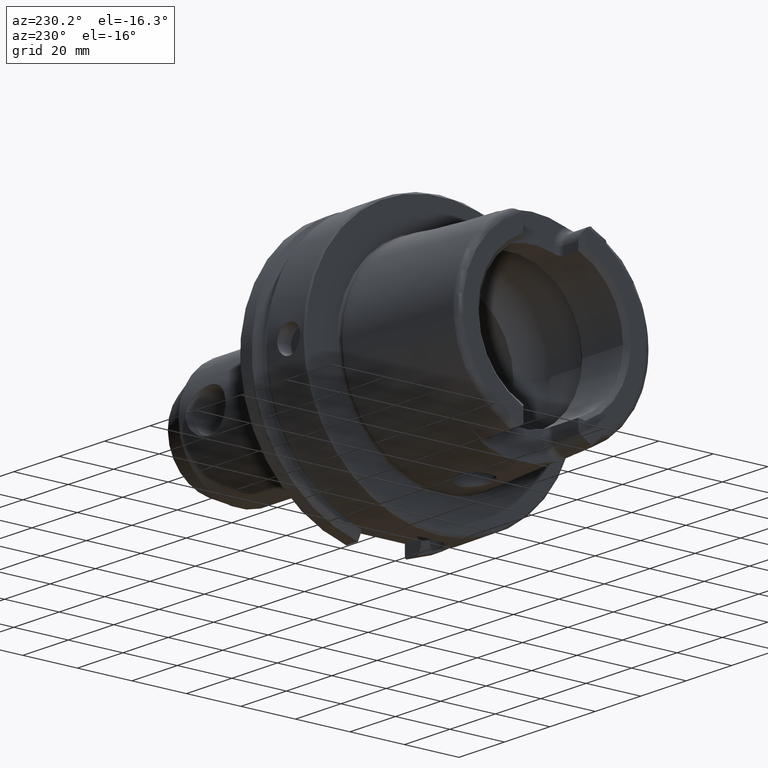
[diagram: clean part render]
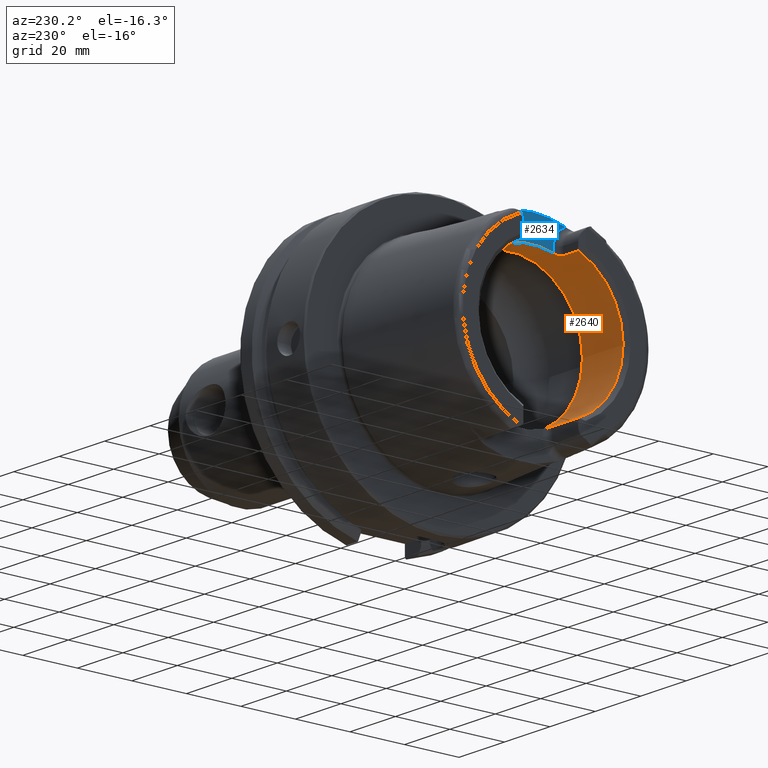
[diagram: same view with the hole feature highlighted: cylindrical wall and planar end face, labeled with their STEP entity ids]
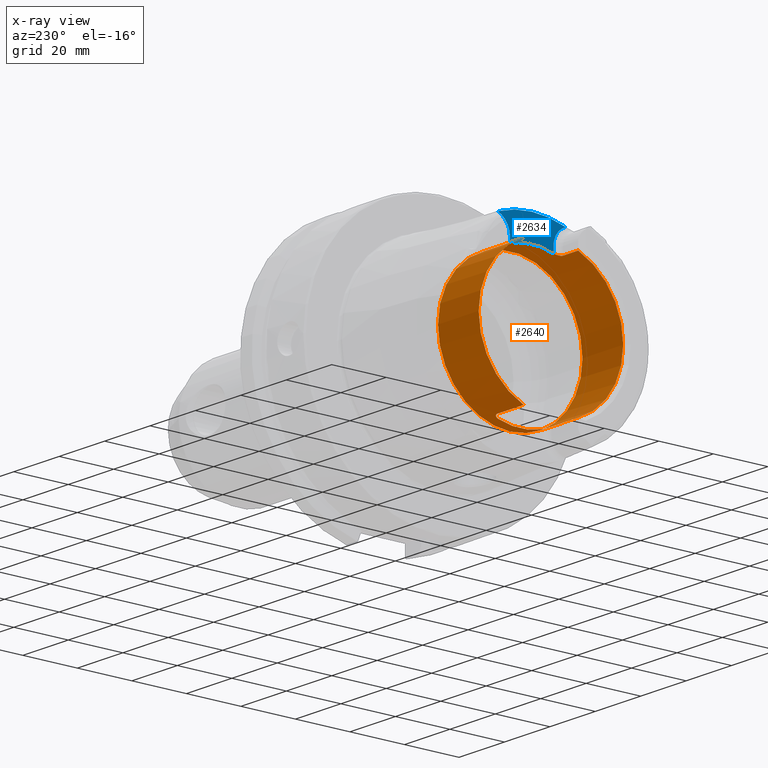
[diagram: x-ray of the same camera — body ghosted, the hole faces saturated]
A machine part, auxiliary view. The highlighted faces form one hole feature of diameter 53 mm: the cylindrical wall (entity #2640, orange) and its adjacent planar end face (entity #2634, blue) — they share a circular edge in the B-rep.
The next image is the same camera in x-ray (body ghosted, the hole faces saturated) — the bore reads through the body.
Wall:
#190=LINE('',#4449,#314);
#198=LINE('',#4528,#322);
#202=LINE('',#4594,#326);
#263=LINE('',#5782,#387);
#267=LINE('',#5832,#391);
#314=VECTOR('',#3251,10.);
#322=VECTOR('',#3293,10.);
#326=VECTOR('',#3313,10.);
#387=VECTOR('',#3606,10.);
#391=VECTOR('',#3652,26.5);
#465=CIRCLE('',#2793,26.5);
#466=CIRCLE('',#2794,26.5);
#535=CIRCLE('',#2923,26.5);
#540=CIRCLE('',#2935,26.5);
#541=CIRCLE('',#2938,26.5);
#544=CIRCLE('',#2945,26.5);
#545=CIRCLE('',#2946,26.5);
#546=CIRCLE('',#2947,26.5);
#620=CYLINDRICAL_SURFACE('',#2944,26.5);
#736=FACE_OUTER_BOUND('',#886,.T.);
#886=EDGE_LOOP('',(#2385,#2386,#2387,#2388,#2389,#2390,#2391,#2392,#2393,
#2394,#2395,#2396,#2397,#2398,#2399,#2400,#2401,#2402));
#990=B_SPLINE_CURVE_WITH_KNOTS('',3,(#5717,#5718,#5719,#5720,#5721,#5722,
#5723,#5724,#5725,#5726),.UNSPECIFIED.,.F.,.F.,(4,2,2,2,4),(0.307245873696209,
0.387318131676521,0.467390389656833,0.542677307505841,0.617964225354849),
 .UNSPECIFIED.);
#991=B_SPLINE_CURVE_WITH_KNOTS('',3,(#5735,#5736,#5737,#5738,#5739,#5740,
#5741,#5742,#5743,#5744),.UNSPECIFIED.,.F.,.F.,(4,2,2,2,4),(0.61796422535485,
0.694491364966707,0.771018504578565,0.849854597041439,0.928690689504313),
 .UNSPECIFIED.);
#992=B_SPLINE_CURVE_WITH_KNOTS('',3,(#5757,#5758,#5759,#5760,#5761,#5762,
#5763,#5764,#5765,#5766),.UNSPECIFIED.,.F.,.F.,(4,2,2,2,4),(0.617964225354849,
0.693251143203857,0.768538061052865,0.848610319033177,0.928682577013489),
 .UNSPECIFIED.);
#993=B_SPLINE_CURVE_WITH_KNOTS('',3,(#5786,#5787,#5788,#5789,#5790,#5791,
#5792,#5793,#5794,#5795),.UNSPECIFIED.,.F.,.F.,(4,2,2,2,4),(0.307245873696209,
0.387318131676521,0.467390389656833,0.542677307505841,0.617964225354849),
 .UNSPECIFIED.);
#1096=VERTEX_POINT('',#4437);
#1099=VERTEX_POINT('',#4447);
#1108=VERTEX_POINT('',#4496);
#1110=VERTEX_POINT('',#4504);
#1111=VERTEX_POINT('',#4508);
#1117=VERTEX_POINT('',#4526);
#1123=VERTEX_POINT('',#4559);
#1128=VERTEX_POINT('',#4593);
#1243=VERTEX_POINT('',#5715);
#1245=VERTEX_POINT('',#5734);
#1249=VERTEX_POINT('',#5755);
#1250=VERTEX_POINT('',#5756);
#1252=VERTEX_POINT('',#5776);
#1254=VERTEX_POINT('',#5827);
#1255=VERTEX_POINT('',#5828);
#1256=VERTEX_POINT('',#5830);
#1417=EDGE_CURVE('',#1096,#1099,#190,.T.);
#1430=EDGE_CURVE('',#1110,#1111,#465,.T.);
#1431=EDGE_CURVE('',#1111,#1108,#466,.T.);
#1440=EDGE_CURVE('',#1110,#1117,#198,.T.);
#1453=EDGE_CURVE('',#1128,#1123,#202,.T.);
#1619=EDGE_CURVE('',#1243,#1117,#990,.T.);
#1623=EDGE_CURVE('',#1128,#1245,#991,.T.);
#1629=EDGE_CURVE('',#1249,#1250,#992,.T.);
#1635=EDGE_CURVE('',#1252,#1250,#535,.T.);
#1638=EDGE_CURVE('',#1249,#1108,#263,.T.);
#1641=EDGE_CURVE('',#1252,#1099,#993,.T.);
#1645=EDGE_CURVE('',#1243,#1245,#540,.T.);
#1647=EDGE_CURVE('',#1096,#1123,#541,.T.);
#1651=EDGE_CURVE('',#1254,#1255,#544,.T.);
#1652=EDGE_CURVE('',#1256,#1254,#545,.T.);
#1653=EDGE_CURVE('',#1256,#1111,#267,.T.);
#1654=EDGE_CURVE('',#1255,#1256,#546,.T.);
#2385=ORIENTED_EDGE('',*,*,#1651,.F.);
#2386=ORIENTED_EDGE('',*,*,#1652,.F.);
#2387=ORIENTED_EDGE('',*,*,#1653,.T.);
#2388=ORIENTED_EDGE('',*,*,#1430,.F.);
#2389=ORIENTED_EDGE('',*,*,#1440,.T.);
#2390=ORIENTED_EDGE('',*,*,#1619,.F.);
#2391=ORIENTED_EDGE('',*,*,#1645,.T.);
#2392=ORIENTED_EDGE('',*,*,#1623,.F.);
#2393=ORIENTED_EDGE('',*,*,#1453,.T.);
#2394=ORIENTED_EDGE('',*,*,#1647,.F.);
#2395=ORIENTED_EDGE('',*,*,#1417,.T.);
#2396=ORIENTED_EDGE('',*,*,#1641,.F.);
#2397=ORIENTED_EDGE('',*,*,#1635,.T.);
#2398=ORIENTED_EDGE('',*,*,#1629,.F.);
#2399=ORIENTED_EDGE('',*,*,#1638,.T.);
#2400=ORIENTED_EDGE('',*,*,#1431,.F.);
#2401=ORIENTED_EDGE('',*,*,#1653,.F.);
#2402=ORIENTED_EDGE('',*,*,#1654,.F.);
#2640=ADVANCED_FACE('',(#736),#620,.F.);
#2793=AXIS2_PLACEMENT_3D('',#4509,#3271,#3272);
#2794=AXIS2_PLACEMENT_3D('',#4510,#3273,#3274);
#2923=AXIS2_PLACEMENT_3D('',#5777,#3599,#3600);
#2935=AXIS2_PLACEMENT_3D('',#5804,#3627,#3628);
#2938=AXIS2_PLACEMENT_3D('',#5819,#3633,#3634);
#2944=AXIS2_PLACEMENT_3D('',#5826,#3646,#3647);
#2945=AXIS2_PLACEMENT_3D('',#5829,#3648,#3649);
#2946=AXIS2_PLACEMENT_3D('',#5831,#3650,#3651);
#2947=AXIS2_PLACEMENT_3D('',#5833,#3653,#3654);
#3251=DIRECTION('',(1.,0.,0.));
#3271=DIRECTION('center_axis',(1.,0.,0.));
#3272=DIRECTION('ref_axis',(0.,-1.,0.));
#3273=DIRECTION('center_axis',(1.,0.,0.));
#3274=DIRECTION('ref_axis',(0.,-1.,0.));
#3293=DIRECTION('',(1.,0.,0.));
#3313=DIRECTION('',(-1.,0.,0.));
#3599=DIRECTION('center_axis',(-1.,0.,0.));
#3600=DIRECTION('ref_axis',(0.,1.,0.));
#3606=DIRECTION('',(-1.,0.,0.));
#3627=DIRECTION('center_axis',(-1.,0.,0.));
#3628=DIRECTION('ref_axis',(0.,1.,0.));
#3633=DIRECTION('center_axis',(1.,0.,0.));
#3634=DIRECTION('ref_axis',(0.,-1.,0.));
#3646=DIRECTION('center_axis',(-1.,0.,0.));
#3647=DIRECTION('ref_axis',(0.,1.,0.));
#3648=DIRECTION('center_axis',(-1.,0.,0.));
#3649=DIRECTION('ref_axis',(0.,0.,1.));
#3650=DIRECTION('center_axis',(-1.,0.,0.));
#3651=DIRECTION('ref_axis',(0.,0.,1.));
#3652=DIRECTION('',(-1.,0.,0.));
#3653=DIRECTION('center_axis',(-1.,0.,0.));
#3654=DIRECTION('ref_axis',(0.,0.,1.));
#4437=CARTESIAN_POINT('',(-48.5,10.01,-24.5367051577835));
#4447=CARTESIAN_POINT('',(-37.,10.01,-24.5367051577835));
#4449=CARTESIAN_POINT('',(-40.2903629710818,10.01,-24.5367051577835));
#4496=CARTESIAN_POINT('',(-48.5,-10.01,-24.5367051577835));
#4504=CARTESIAN_POINT('',(-48.5,-10.01,24.5367051577835));
#4508=CARTESIAN_POINT('',(-48.5,-26.5,3.24531401774049E-15));
#4509=CARTESIAN_POINT('Origin',(-48.5,0.,0.));
#4510=CARTESIAN_POINT('Origin',(-48.5,0.,0.));
#4526=CARTESIAN_POINT('',(-42.,-10.01,24.5367051577835));
#4528=CARTESIAN_POINT('',(-40.2903629710818,-10.01,24.5367051577835));
#4559=CARTESIAN_POINT('',(-48.5,10.01,24.5367051577835));
#4593=CARTESIAN_POINT('',(-42.,10.01,24.5367051577835));
#4594=CARTESIAN_POINT('',(-40.2903629710818,10.01,24.5367051577835));
#5715=CARTESIAN_POINT('',(-40.,-8.01,25.2604414054862));
#5717=CARTESIAN_POINT('Ctrl Pts',(-40.,-8.01,25.2604414054862));
#5718=CARTESIAN_POINT('Ctrl Pts',(-40.,-8.26442271458071,25.1797648285777));
#5719=CARTESIAN_POINT('Ctrl Pts',(-40.0513332778729,-8.53503831367686,25.0892968127514));
#5720=CARTESIAN_POINT('Ctrl Pts',(-40.2604388709541,-9.03317850506395,24.9142806373643));
#5721=CARTESIAN_POINT('Ctrl Pts',(-40.4182028025644,-9.2607746884821,24.8299262887475));
#5722=CARTESIAN_POINT('Ctrl Pts',(-40.7762398849713,-9.61038047170956,24.6966285655713));
#5723=CARTESIAN_POINT('Ctrl Pts',(-40.996584045901,-9.75993653512726,24.6374761492843));
#5724=CARTESIAN_POINT('Ctrl Pts',(-41.4829332858843,-9.95981108540838,24.557356442995));
#5725=CARTESIAN_POINT('Ctrl Pts',(-41.74904360717,-10.01,24.5367051577835));
#5726=CARTESIAN_POINT('Ctrl Pts',(-42.,-10.01,24.5367051577835));
#5734=CARTESIAN_POINT('',(-40.,8.01,25.2604414054862));
#5735=CARTESIAN_POINT('Ctrl Pts',(-42.,10.01,24.5367051577835));
#5736=CARTESIAN_POINT('Ctrl Pts',(-41.7449095346271,10.01,24.5367051577835));
#5737=CARTESIAN_POINT('Ctrl Pts',(-41.4747619014646,9.95816285425487,24.5580391842641));
#5738=CARTESIAN_POINT('Ctrl Pts',(-40.9823460284033,9.75229566196282,24.640515927451));
#5739=CARTESIAN_POINT('Ctrl Pts',(-40.7599680829949,9.59839520774108,24.7013267120605));
#5740=CARTESIAN_POINT('Ctrl Pts',(-40.4063494382929,9.24477656303909,24.8358806096526));
#5741=CARTESIAN_POINT('Ctrl Pts',(-40.2529543645221,9.01930384320105,24.9192727261742));
#5742=CARTESIAN_POINT('Ctrl Pts',(-40.049776768453,8.52719637786957,25.0919293188873));
#5743=CARTESIAN_POINT('Ctrl Pts',(-40.,8.26049490494288,25.1810103236462));
#5744=CARTESIAN_POINT('Ctrl Pts',(-40.,8.01,25.2604414054862));
#5755=CARTESIAN_POINT('',(-37.,-10.01,-24.5367051577835));
#5756=CARTESIAN_POINT('',(-35.,-8.01,-25.2604414054862));
#5757=CARTESIAN_POINT('Ctrl Pts',(-37.,-10.01,-24.5367051577835));
#5758=CARTESIAN_POINT('Ctrl Pts',(-36.74904360717,-10.01,-24.5367051577835));
#5759=CARTESIAN_POINT('Ctrl Pts',(-36.4829332858843,-9.95981108540838,-24.557356442995));
#5760=CARTESIAN_POINT('Ctrl Pts',(-35.9965840459011,-9.75993653512726,-24.6374761492843));
#5761=CARTESIAN_POINT('Ctrl Pts',(-35.7762398849713,-9.61038047170956,-24.6966285655713));
#5762=CARTESIAN_POINT('Ctrl Pts',(-35.4182028025644,-9.2607746884821,-24.8299262887475));
#5763=CARTESIAN_POINT('Ctrl Pts',(-35.2604388709541,-9.03317850506395,-24.9142806373643));
#5764=CARTESIAN_POINT('Ctrl Pts',(-35.0513332778729,-8.53503831367686,-25.0892968127514));
#5765=CARTESIAN_POINT('Ctrl Pts',(-35.,-8.26442271458071,-25.1797648285777));
#5766=CARTESIAN_POINT('Ctrl Pts',(-35.,-8.01,-25.2604414054862));
#5776=CARTESIAN_POINT('',(-35.,8.01,-25.2604414054862));
#5777=CARTESIAN_POINT('Origin',(-35.,0.,0.));
#5782=CARTESIAN_POINT('',(-40.2903629710818,-10.01,-24.5367051577835));
#5786=CARTESIAN_POINT('Ctrl Pts',(-35.,8.01,-25.2604414054862));
#5787=CARTESIAN_POINT('Ctrl Pts',(-35.,8.26442271458071,-25.1797648285777));
#5788=CARTESIAN_POINT('Ctrl Pts',(-35.0513332778729,8.53503831367686,-25.0892968127514));
#5789=CARTESIAN_POINT('Ctrl Pts',(-35.2604388709541,9.03317850506395,-24.9142806373643));
#5790=CARTESIAN_POINT('Ctrl Pts',(-35.4182028025644,9.2607746884821,-24.8299262887475));
#5791=CARTESIAN_POINT('Ctrl Pts',(-35.7762398849713,9.61038047170956,-24.6966285655713));
#5792=CARTESIAN_POINT('Ctrl Pts',(-35.9965840459011,9.75993653512726,-24.6374761492843));
#5793=CARTESIAN_POINT('Ctrl Pts',(-36.4829332858843,9.95981108540838,-24.557356442995));
#5794=CARTESIAN_POINT('Ctrl Pts',(-36.74904360717,10.01,-24.5367051577835));
#5795=CARTESIAN_POINT('Ctrl Pts',(-37.,10.01,-24.5367051577835));
#5804=CARTESIAN_POINT('Origin',(-40.,0.,0.));
#5819=CARTESIAN_POINT('Origin',(-48.5,0.,0.));
#5826=CARTESIAN_POINT('Origin',(-40.2903629710818,0.,0.));
#5827=CARTESIAN_POINT('',(-30.5807259421637,26.5,0.));
#5828=CARTESIAN_POINT('',(-30.5807259421637,-3.24531401774049E-15,-26.5));
#5829=CARTESIAN_POINT('Origin',(-30.5807259421637,0.,0.));
#5830=CARTESIAN_POINT('',(-30.5807259421637,-26.5,3.24531401774049E-15));
#5831=CARTESIAN_POINT('Origin',(-30.5807259421637,0.,0.));
#5832=CARTESIAN_POINT('',(-40.2903629710818,-26.5,3.24531401774049E-15));
#5833=CARTESIAN_POINT('Origin',(-30.5807259421637,0.,0.));
End face:
#142=PLANE('',#2934);
#257=LINE('',#5716,#381);
#258=LINE('',#5745,#382);
#381=VECTOR('',#3560,10.);
#382=VECTOR('',#3573,10.);
#478=CIRCLE('',#2816,36.003493987976);
#526=CIRCLE('',#2907,6.88);
#528=CIRCLE('',#2910,6.88);
#540=CIRCLE('',#2935,26.5);
#730=FACE_OUTER_BOUND('',#880,.T.);
#880=EDGE_LOOP('',(#2355,#2356,#2357,#2358,#2359,#2360));
#1143=VERTEX_POINT('',#4880);
#1144=VERTEX_POINT('',#4897);
#1242=VERTEX_POINT('',#5713);
#1243=VERTEX_POINT('',#5715);
#1244=VERTEX_POINT('',#5730);
#1245=VERTEX_POINT('',#5734);
#1473=EDGE_CURVE('',#1143,#1144,#478,.T.);
#1618=EDGE_CURVE('',#1242,#1243,#257,.T.);
#1620=EDGE_CURVE('',#1144,#1242,#526,.T.);
#1622=EDGE_CURVE('',#1244,#1143,#528,.T.);
#1624=EDGE_CURVE('',#1245,#1244,#258,.T.);
#1645=EDGE_CURVE('',#1243,#1245,#540,.T.);
#2355=ORIENTED_EDGE('',*,*,#1620,.F.);
#2356=ORIENTED_EDGE('',*,*,#1473,.F.);
#2357=ORIENTED_EDGE('',*,*,#1622,.F.);
#2358=ORIENTED_EDGE('',*,*,#1624,.F.);
#2359=ORIENTED_EDGE('',*,*,#1645,.F.);
#2360=ORIENTED_EDGE('',*,*,#1618,.F.);
#2634=ADVANCED_FACE('',(#730),#142,.T.);
#2816=AXIS2_PLACEMENT_3D('',#4898,#3329,#3330);
#2907=AXIS2_PLACEMENT_3D('',#5728,#3563,#3564);
#2910=AXIS2_PLACEMENT_3D('',#5732,#3569,#3570);
#2934=AXIS2_PLACEMENT_3D('',#5803,#3625,#3626);
#2935=AXIS2_PLACEMENT_3D('',#5804,#3627,#3628);
#3329=DIRECTION('center_axis',(1.,0.,0.));
#3330=DIRECTION('ref_axis',(0.,1.,0.));
#3560=DIRECTION('',(0.,0.,-1.));
#3563=DIRECTION('center_axis',(-1.,0.,0.));
#3564=DIRECTION('ref_axis',(0.,0.564947834751706,0.82512662301574));
#3569=DIRECTION('center_axis',(-1.,0.,0.));
#3570=DIRECTION('ref_axis',(0.,-0.564947834751705,0.825126623015741));
#3573=DIRECTION('',(0.,0.,1.));
#3625=DIRECTION('center_axis',(-1.,0.,0.));
#3626=DIRECTION('ref_axis',(0.,0.,1.));
#3627=DIRECTION('center_axis',(-1.,0.,0.));
#3628=DIRECTION('ref_axis',(0.,1.,0.));
#4880=CARTESIAN_POINT('',(-40.,12.4227760464511,33.7923987701664));
#4897=CARTESIAN_POINT('',(-40.,-12.4227760464511,33.7923987701664));
#4898=CARTESIAN_POINT('Origin',(-40.,0.,0.));
#5713=CARTESIAN_POINT('',(-40.,-8.01,27.37));
#5715=CARTESIAN_POINT('',(-40.,-8.01,25.2604414054862));
#5716=CARTESIAN_POINT('',(-40.,-8.01,23.5));
#5728=CARTESIAN_POINT('Origin',(-40.,-14.89,27.37));
#5730=CARTESIAN_POINT('',(-40.,8.01,27.37));
#5732=CARTESIAN_POINT('Origin',(-40.,14.89,27.37));
#5734=CARTESIAN_POINT('',(-40.,8.01,25.2604414054862));
#5745=CARTESIAN_POINT('',(-40.,8.01,28.185));
#5803=CARTESIAN_POINT('Origin',(-40.,0.,29.));
#5804=CARTESIAN_POINT('Origin',(-40.,0.,0.));